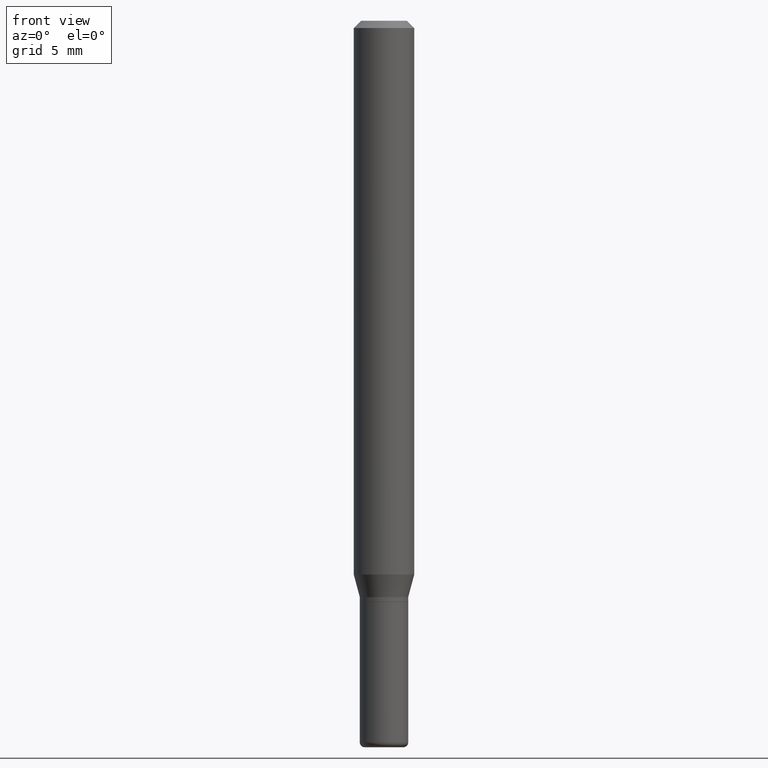
[diagram: clean part render]
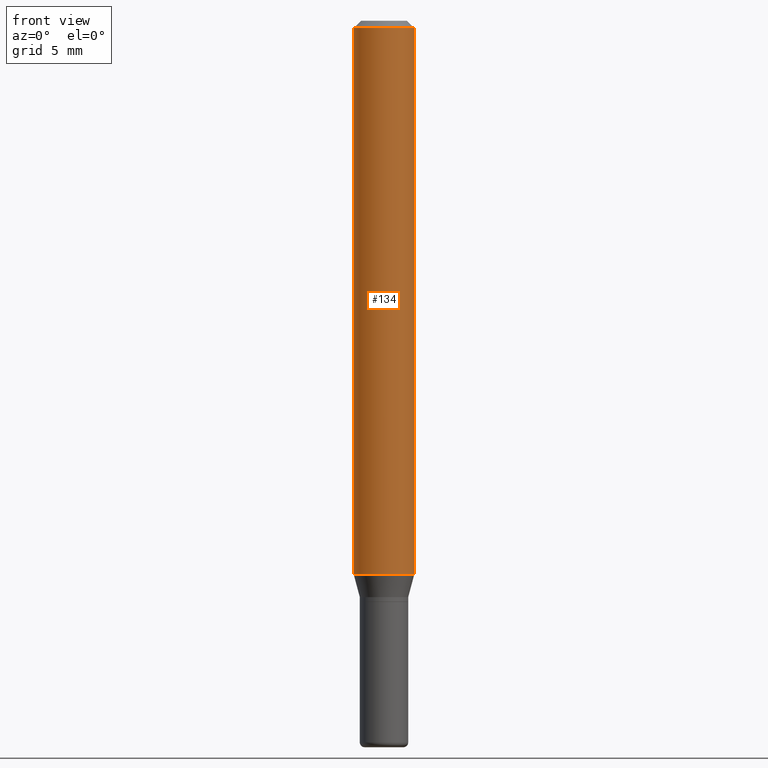
[diagram: same view with one face highlighted and labeled with its STEP entity id]
A machine part, front view. The second image highlights one B-rep face of the part: STEP entity #134.
In plain terms, the highlighted cylindrical surface (edge-blend (fillet) strip) has radius 1.5875 mm, axis along (-0, 0, 1).
Its self-contained STEP definition (entity closure, byte-faithful):
#4 = ORIENTED_EDGE ( 'NONE', *, *, #510, .T. ) ;
#18 = DIRECTION ( 'NONE',  ( -2.445468806185136597E-29, 3.491481338843145583E-15, 1.000000000000000000 ) ) ;
#21 = DIRECTION ( 'NONE',  ( -2.445468806185136877E-29, 3.491481338843145188E-15, 1.000000000000000000 ) ) ;
#36 = CARTESIAN_POINT ( 'NONE',  ( -0.06250000000000000000, -1.578088385863924241E-15, -0.01499999999999970281 ) ) ;
#37 = CIRCLE ( 'NONE', #449, 0.06250000000000000000 ) ;
#38 = AXIS2_PLACEMENT_3D ( 'NONE', #276, #395, #358 ) ;
#42 = CARTESIAN_POINT ( 'NONE',  ( 0.06250000000000000000, -4.428418138700719093E-15, -1.143349364905388965 ) ) ;
#46 = VECTOR ( 'NONE', #102, 39.37007874015748143 ) ;
#51 = DIRECTION ( 'NONE',  ( -2.445468806185136597E-29, 3.491481338843145583E-15, 1.000000000000000000 ) ) ;
#52 = EDGE_LOOP ( 'NONE', ( #225, #4, #408, #120 ) ) ;
#61 = CARTESIAN_POINT ( 'NONE',  ( 0.000000000000000000, 0.000000000000000000, 0.000000000000000000 ) ) ;
#67 = VERTEX_POINT ( 'NONE', #42 ) ;
#94 = VERTEX_POINT ( 'NONE', #36 ) ;
#102 = DIRECTION ( 'NONE',  ( -2.445468806185136877E-29, 3.491481338843145188E-15, 1.000000000000000000 ) ) ;
#120 = ORIENTED_EDGE ( 'NONE', *, *, #142, .F. ) ;
#126 = EDGE_CURVE ( 'NONE', #67, #252, #447, .T. ) ;
#133 = DIRECTION ( 'NONE',  ( 1.000000000000000000, -6.982962677686266711E-15, 4.876176775795935793E-29 ) ) ;
#134 = ADVANCED_FACE ( 'NONE', ( #364 ), #487, .T. ) ;
#142 = EDGE_CURVE ( 'NONE', #94, #252, #37, .T. ) ;
#184 = VECTOR ( 'NONE', #21, 39.37007874015748143 ) ;
#222 = AXIS2_PLACEMENT_3D ( 'NONE', #61, #18, #133 ) ;
#225 = ORIENTED_EDGE ( 'NONE', *, *, #382, .F. ) ;
#252 = VERTEX_POINT ( 'NONE', #330 ) ;
#276 = CARTESIAN_POINT ( 'NONE',  ( 2.796025206447715578E-29, -3.991982971345327424E-15, -1.143349364905388965 ) ) ;
#302 = LINE ( 'NONE', #472, #184 ) ;
#322 = VERTEX_POINT ( 'NONE', #507 ) ;
#330 = CARTESIAN_POINT ( 'NONE',  ( 0.06250000000000000000, -4.888073874380378612E-16, -0.01499999999999970281 ) ) ;
#358 = DIRECTION ( 'NONE',  ( 1.000000000000000000, -6.982962677686262766E-15, 0.000000000000000000 ) ) ;
#361 = CIRCLE ( 'NONE', #38, 0.06250000000000000000 ) ;
#364 = FACE_OUTER_BOUND ( 'NONE', #52, .T. ) ;
#371 = CARTESIAN_POINT ( 'NONE',  ( 3.668203209277632395E-31, -5.237222008264614861E-17, -0.01499999999999970281 ) ) ;
#382 = EDGE_CURVE ( 'NONE', #322, #94, #302, .T. ) ;
#395 = DIRECTION ( 'NONE',  ( -2.445468806185136597E-29, 3.491481338843145583E-15, 1.000000000000000000 ) ) ;
#407 = CARTESIAN_POINT ( 'NONE',  ( 0.06250000000000000000, -4.364351673553916694E-16, 3.047610484872459871E-30 ) ) ;
#408 = ORIENTED_EDGE ( 'NONE', *, *, #126, .T. ) ;
#413 = DIRECTION ( 'NONE',  ( 1.000000000000000000, -6.982962677686266711E-15, 0.000000000000000000 ) ) ;
#447 = LINE ( 'NONE', #407, #46 ) ;
#449 = AXIS2_PLACEMENT_3D ( 'NONE', #371, #51, #413 ) ;
#472 = CARTESIAN_POINT ( 'NONE',  ( -0.06250000000000000000, 4.440892098500626162E-16, -3.074334431409316114E-30 ) ) ;
#487 = CYLINDRICAL_SURFACE ( 'NONE', #222, 0.06250000000000000000 ) ;
#507 = CARTESIAN_POINT ( 'NONE',  ( -0.06250000000000000000, -3.547893761495265202E-15, -1.143349364905388965 ) ) ;
#510 = EDGE_CURVE ( 'NONE', #322, #67, #361, .T. ) ;